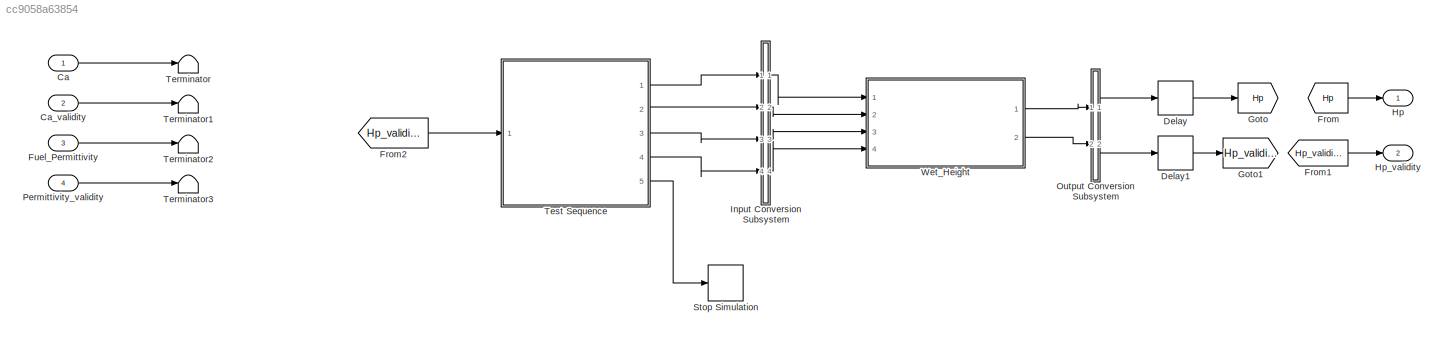
MODEL slx_cc9058a63854
KIND model
CONFIG AbsTol = auto
CONFIG EnableMultiTasking = off
CONFIG FixedStep = 0.02
CONFIG MaxStep = auto
CONFIG MinStep = auto
CONFIG RelTol = 1e-3
CONFIG SampleTimeConstraint = Unconstrained
CONFIG Solver = FixedStepAuto
CONFIG SolverName = FixedStepAuto
CONFIG StartTime = 0.0
CONFIG StopTime = 10
BLOCK [Inport] Ca
  IconDisplay = Port number
  OutDataTypeStr = double
  PortDimensions = [1]
  SampleTime = [-1, 0]
  SignalType = real
  VarSizeSig = No
BLOCK [Inport] Ca_validity
  IconDisplay = Port number
  OutDataTypeStr = boolean
  Port = 2
  PortDimensions = [1]
  SampleTime = [-1, 0]
  SignalType = real
  VarSizeSig = No
BLOCK [Delay] Delay
  DelayLength = 1
  InputPortMap = u0
  Ports = [1, 1]
BLOCK [Delay] Delay1
  DelayLength = 1
  InputPortMap = u0
  Ports = [1, 1]
BLOCK [From] From
  GotoTag = Hp
BLOCK [From] From1
  GotoTag = Hp_validity
BLOCK [From] From2
  GotoTag = Hp_validity
BLOCK [Inport] Fuel_Permittivity
  IconDisplay = Port number
  OutDataTypeStr = double
  Port = 3
  PortDimensions = [1]
  SampleTime = [-1, 0]
  SignalType = real
  VarSizeSig = No
BLOCK [Goto] Goto
  GotoTag = Hp
BLOCK [Goto] Goto1
  GotoTag = Hp_validity
BLOCK [Outport] Hp
  IconDisplay = Port number
BLOCK [Outport] Hp_validity
  IconDisplay = Port number
  Port = 2
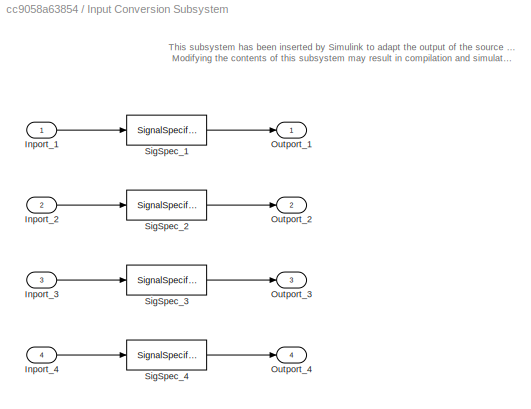
BLOCK [SubSystem] Input Conversion Subsystem
  AttributesFormatString = %<Description>
  Description = Signal spec.\nand routing
  Permissions = ReadOnly
  PermitHierarchicalResolution = ExplicitOnly
  Ports = [4, 4]
  RequestExecContextInheritance = off
  Tag = __SLT_ICS__
  UserDataPersistent = on
BLOCK [Inport] Input Conversion Subsystem/Inport_1
  IconDisplay = Port number
BLOCK [Inport] Input Conversion Subsystem/Inport_2
  IconDisplay = Port number
  Port = 2
BLOCK [Inport] Input Conversion Subsystem/Inport_3
  IconDisplay = Port number
  Port = 3
BLOCK [Inport] Input Conversion Subsystem/Inport_4
  IconDisplay = Port number
  Port = 4
BLOCK [Outport] Input Conversion Subsystem/Outport_1
  IconDisplay = Port number
BLOCK [Outport] Input Conversion Subsystem/Outport_2
  IconDisplay = Port number
  Port = 2
BLOCK [Outport] Input Conversion Subsystem/Outport_3
  IconDisplay = Port number
  Port = 3
BLOCK [Outport] Input Conversion Subsystem/Outport_4
  IconDisplay = Port number
  Port = 4
BLOCK [SignalSpecification] Input Conversion Subsystem/SigSpec_1
  Dimensions = [1]
  OutDataTypeStr = double
  SampleTime = [-1, 0]
  SignalType = real
  Unit = pF
  VarSizeSig = No
BLOCK [SignalSpecification] Input Conversion Subsystem/SigSpec_2
  Dimensions = [1]
  OutDataTypeStr = boolean
  SampleTime = [-1, 0]
  SignalType = real
  VarSizeSig = No
BLOCK [SignalSpecification] Input Conversion Subsystem/SigSpec_3
  Dimensions = [1]
  OutDataTypeStr = double
  SampleTime = [-1, 0]
  SignalType = real
  VarSizeSig = No
BLOCK [SignalSpecification] Input Conversion Subsystem/SigSpec_4
  Dimensions = [1]
  OutDataTypeStr = boolean
  SampleTime = [-1, 0]
  SignalType = real
  VarSizeSig = No
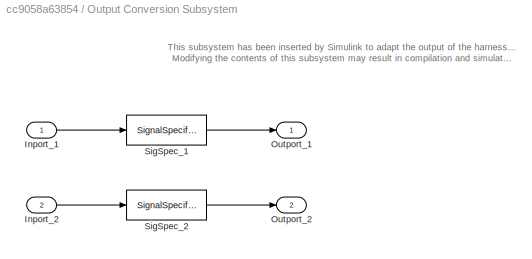
BLOCK [SubSystem] Output Conversion Subsystem
  AttributesFormatString = %<Description>
  Description = Signal spec.\nand routing
  Permissions = ReadOnly
  PermitHierarchicalResolution = ExplicitOnly
  Ports = [2, 2]
  RequestExecContextInheritance = off
  Tag = __SLT_OCS__
  UserDataPersistent = on
BLOCK [Inport] Output Conversion Subsystem/Inport_1
  IconDisplay = Port number
BLOCK [Inport] Output Conversion Subsystem/Inport_2
  IconDisplay = Port number
  Port = 2
BLOCK [Outport] Output Conversion Subsystem/Outport_1
  IconDisplay = Port number
BLOCK [Outport] Output Conversion Subsystem/Outport_2
  IconDisplay = Port number
  Port = 2
BLOCK [SignalSpecification] Output Conversion Subsystem/SigSpec_1
  Dimensions = [1]
  OutDataTypeStr = double
  SignalType = real
  Unit = mm
  VarSizeSig = No
BLOCK [SignalSpecification] Output Conversion Subsystem/SigSpec_2
  Dimensions = [1]
  OutDataTypeStr = boolean
  SignalType = real
  VarSizeSig = No
BLOCK [Inport] Permittivity_validity
  IconDisplay = Port number
  OutDataTypeStr = boolean
  Port = 4
  PortDimensions = [1]
  SampleTime = [-1, 0]
  SignalType = real
  VarSizeSig = No
BLOCK [Stop] Stop Simulation
BLOCK [Terminator] Terminator
BLOCK [Terminator] Terminator1
BLOCK [Terminator] Terminator2
BLOCK [Terminator] Terminator3
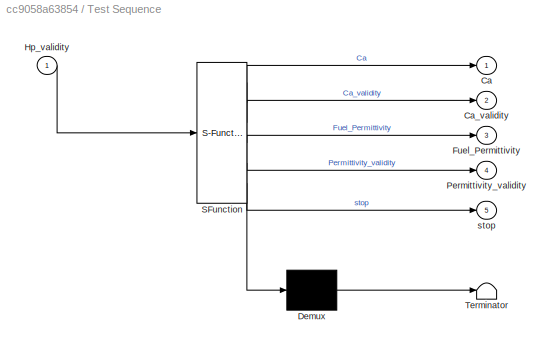
BLOCK [SubSystem] Test Sequence
  ErrorFcn = Stateflow.Translate.translate
  PermitHierarchicalResolution = ExplicitOnly
  Ports = [1, 5]
  RequestExecContextInheritance = off
  SFBlockType = Test Sequence
  TreatAsAtomicUnit = on
BLOCK [Demux] Test Sequence/ Demux 
  Outputs = 1
  Ports = [1, 1]
BLOCK [S-Function] Test Sequence/ SFunction 
  EnableBusSupport = on
  FunctionName = sf_sfun
  PortCounts = [1 6]
  Ports = [1, 6]
  SFcnIsStateOwnerBlock = off
  SFunctionDeploymentMode = off
  Tag = Stateflow S-Function 4
BLOCK [Terminator] Test Sequence/ Terminator 
BLOCK [Outport] Test Sequence/Ca
  IconDisplay = Port number
BLOCK [Outport] Test Sequence/Ca_validity
  IconDisplay = Port number
  Port = 2
BLOCK [Outport] Test Sequence/Fuel_Permittivity
  IconDisplay = Port number
  Port = 3
BLOCK [Inport] Test Sequence/Hp_validity
  IconDisplay = Port number
BLOCK [Outport] Test Sequence/Permittivity_validity
  IconDisplay = Port number
  Port = 4
BLOCK [Outport] Test Sequence/stop
  IconDisplay = Port number
  Port = 5
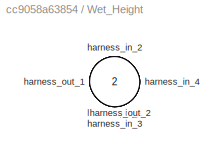
BLOCK [SubSystem] Wet_Height
  Ports = [4, 2]
  RequestExecContextInheritance = off
  Tag = __SL_testing_harness_stub_
BLOCK [Inport] Wet_Height/harness_in_1
  IconDisplay = Port number
BLOCK [Inport] Wet_Height/harness_in_2
  IconDisplay = Port number
  Port = 2
BLOCK [Inport] Wet_Height/harness_in_3
  IconDisplay = Port number
  Port = 3
BLOCK [Inport] Wet_Height/harness_in_4
  IconDisplay = Port number
  Port = 4
BLOCK [Outport] Wet_Height/harness_out_1
  IconDisplay = Port number
BLOCK [Outport] Wet_Height/harness_out_2
  IconDisplay = Port number
  Port = 2
ANNOTATION Input Conversion Subsystem: This subsystem has been inserted by Simulink to adapt the output of the source blocks to the interface required by the harnessed component. Modifying the contents of this subsystem may result in compilation and simulation failure.
ANNOTATION Output Conversion Subsystem: This subsystem has been inserted by Simulink to adapt the output of the harnessed component to the interface required by the sink blocks. Modifying the contents of this subsystem may result in compilation and simulation failure.
LINE Ca:1 -> Terminator:1
LINE Ca_validity:1 -> Terminator1:1
LINE Delay1:1 -> Goto1:1
LINE Delay:1 -> Goto:1
LINE From1:1 -> Hp_validity:1
LINE From2:1 -> Test Sequence:1
LINE From:1 -> Hp:1
LINE Fuel_Permittivity:1 -> Terminator2:1
LINE Input Conversion Subsystem/Inport_1:1 -> Input Conversion Subsystem/SigSpec_1:1
LINE Input Conversion Subsystem/Inport_2:1 -> Input Conversion Subsystem/SigSpec_2:1
LINE Input Conversion Subsystem/Inport_3:1 -> Input Conversion Subsystem/SigSpec_3:1
LINE Input Conversion Subsystem/Inport_4:1 -> Input Conversion Subsystem/SigSpec_4:1
LINE Input Conversion Subsystem/SigSpec_1:1 -> Input Conversion Subsystem/Outport_1:1
LINE Input Conversion Subsystem/SigSpec_2:1 -> Input Conversion Subsystem/Outport_2:1
LINE Input Conversion Subsystem/SigSpec_3:1 -> Input Conversion Subsystem/Outport_3:1
LINE Input Conversion Subsystem/SigSpec_4:1 -> Input Conversion Subsystem/Outport_4:1
LINE Input Conversion Subsystem:1 -> Wet_Height:1
LINE Input Conversion Subsystem:2 -> Wet_Height:2
LINE Input Conversion Subsystem:3 -> Wet_Height:3
LINE Input Conversion Subsystem:4 -> Wet_Height:4
LINE Output Conversion Subsystem/Inport_1:1 -> Output Conversion Subsystem/SigSpec_1:1
LINE Output Conversion Subsystem/Inport_2:1 -> Output Conversion Subsystem/SigSpec_2:1
LINE Output Conversion Subsystem/SigSpec_1:1 -> Output Conversion Subsystem/Outport_1:1
LINE Output Conversion Subsystem/SigSpec_2:1 -> Output Conversion Subsystem/Outport_2:1
LINE Output Conversion Subsystem:1 -> Delay:1
LINE Output Conversion Subsystem:2 -> Delay1:1
LINE Permittivity_validity:1 -> Terminator3:1
LINE Test Sequence:1 -> Input Conversion Subsystem:1
LINE Test Sequence:2 -> Input Conversion Subsystem:2
LINE Test Sequence:3 -> Input Conversion Subsystem:3
LINE Test Sequence:4 -> Input Conversion Subsystem:4
LINE Test Sequence:5 -> Stop Simulation:1
LINE Wet_Height:1 -> Output Conversion Subsystem:1
LINE Wet_Height:2 -> Output Conversion Subsystem:2
CHART Test Sequence states=9 transitions=21
  STATE_LABEL 'Initialization\nCa=0;\nCa_validity=true;\nFuel_Permittivity=0;\nPermittivity_validity=true;\nstop=false;\ncount=0;'
  STATE_LABEL 'step_1\nCa=10;\nCa_validity=true;\nFuel_Permittivity=2;\nPermittivity_validity=true;'
  STATE_LABEL 'step_2\nverify(Hp_validity==true);'
  STATE_LABEL 'step_3\nCa=30000;\nCa_validity=false;\nFuel_Permittivity=10;\nPermittivity_validity=false;'
  STATE_LABEL 'step_4\ncount=count+1;\nverify(Hp_validity==false);'
  STATE_LABEL 'step_5\nCa= 10000;\nCa_validity=false;\nFuel_Permittivity=5;\nPermittivity_validity=true;'
  STATE_LABEL 'step_6\nCa=1000;\nCa_validity=false;\nFuel_Permittivity=3;\nPermittivity_validity=true;'
  STATE_LABEL 'step_8\nCa= 1000;\nCa_validity=false;\nFuel_Permittivity=3;\nPermittivity_validity=false;'
  STATE_LABEL 'step_9\nstop=true;'
